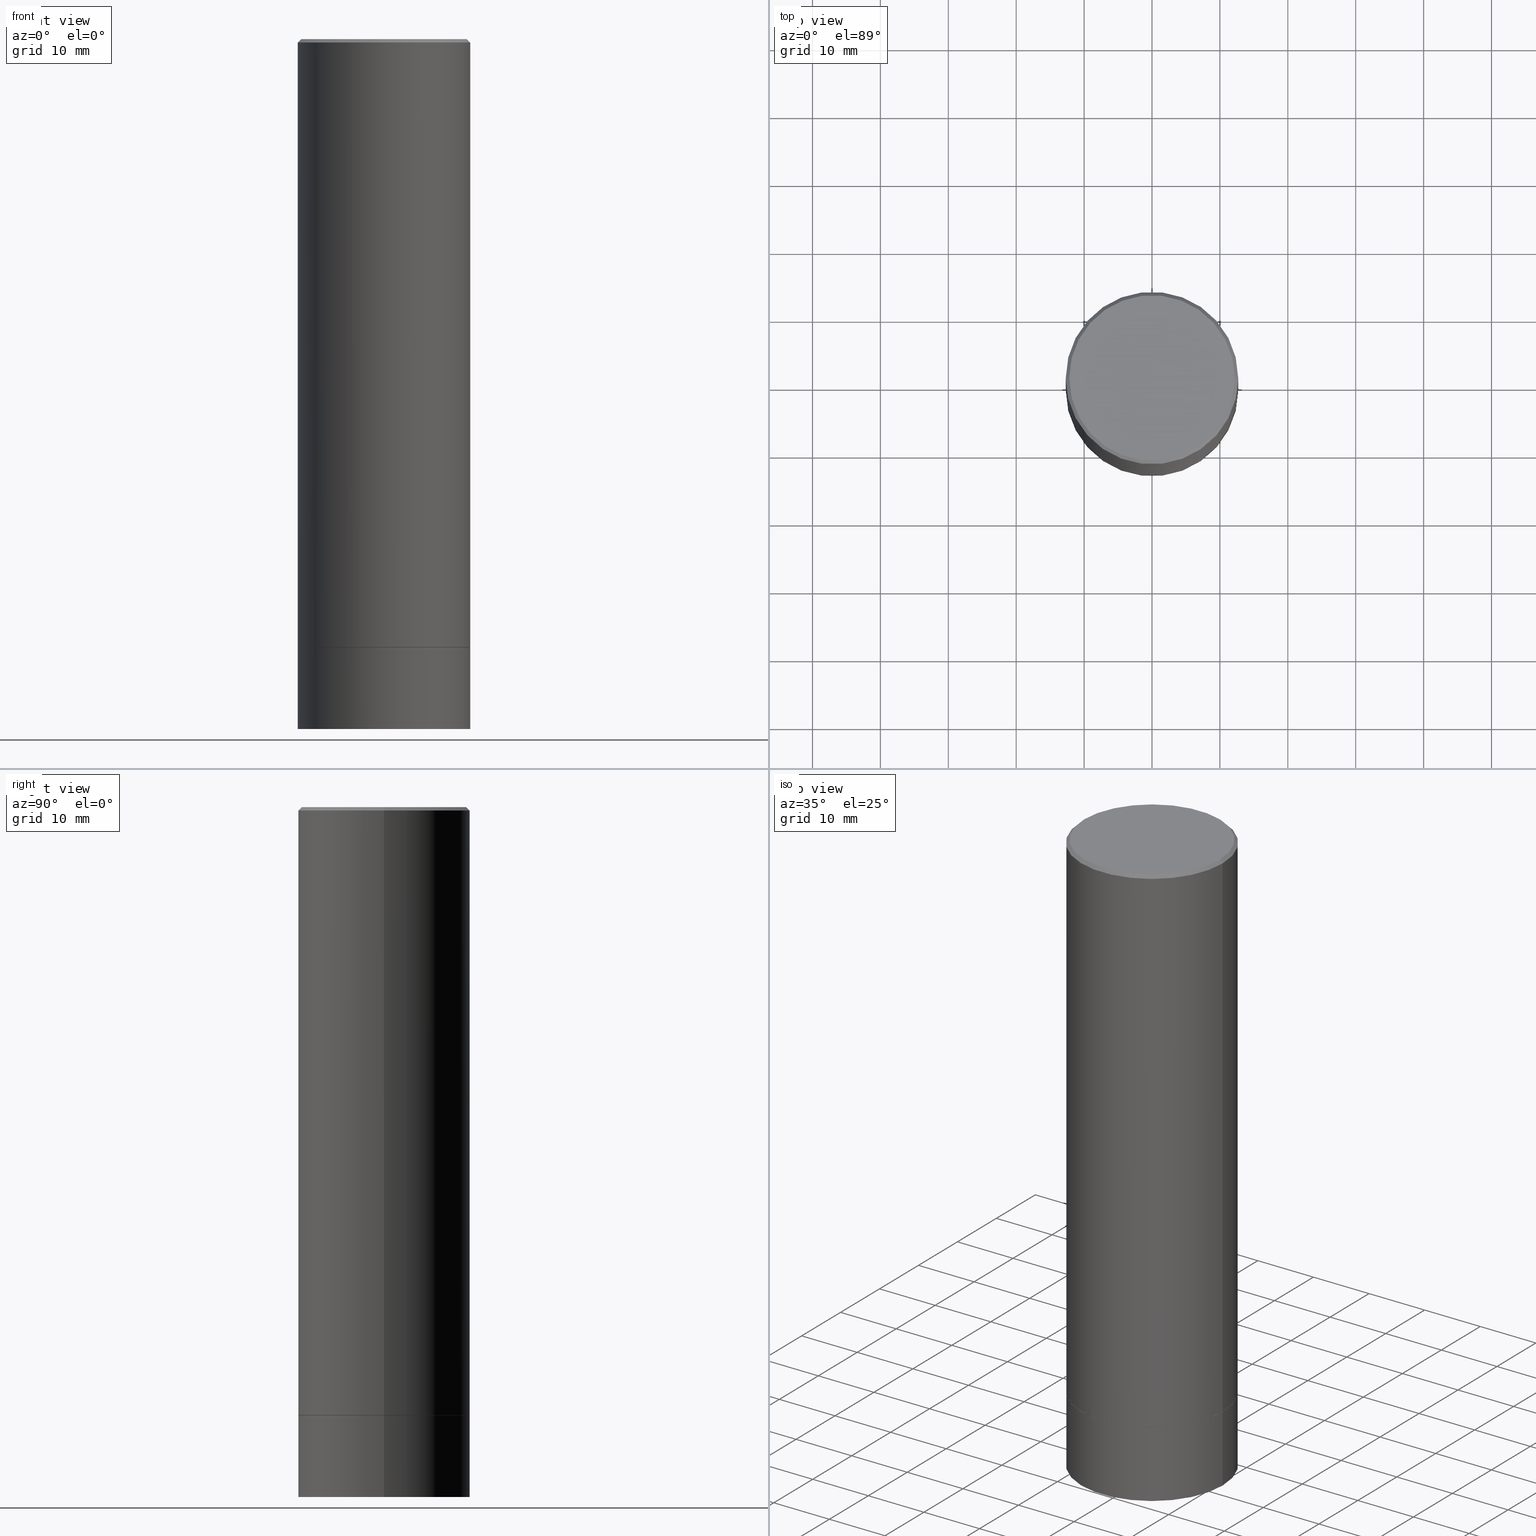
[diagram: canonical four-view strip — front | top / right | iso, engineering-drawing reading convention]
A machine part, canonical four-view strip (front | top / right | iso — engineering-drawing reading convention). The complete STEP part file that produces these views, byte-faithful:
ISO-10303-21;
HEADER;
FILE_DESCRIPTION (( 'STEP AP203' ),
    '1' );
FILE_NAME ('32671.STEP',
    '2022-04-27T15:46:50',
    ( '' ),
    ( '' ),
    'SwSTEP 2.0',
    'SolidWorks 2022',
    '' );
FILE_SCHEMA (( 'CONFIG_CONTROL_DESIGN' ));
ENDSEC;

DATA;
#1 = DIRECTION ( 'NONE',  ( -1.000000000000000000, 6.982962677686266711E-15, 0.000000000000000000 ) ) ;
#2 = AXIS2_PLACEMENT_3D ( 'NONE', #195, #164, #320 ) ;
#3 = ORIENTED_EDGE ( 'NONE', *, *, #51, .T. ) ;
#4 = ORIENTED_EDGE ( 'NONE', *, *, #96, .T. ) ;
#5 = COORDINATED_UNIVERSAL_TIME_OFFSET ( 5, 0, .BEHIND. ) ;
#6 = EDGE_LOOP ( 'NONE', ( #251, #119, #149, #74 ) ) ;
#7 = ORIENTED_EDGE ( 'NONE', *, *, #163, .F. ) ;
#8 = VECTOR ( 'NONE', #206, 39.37007874015748143 ) ;
#9 = DIRECTION ( 'NONE',  ( -2.445468806185136597E-29, 3.491481338843145583E-15, 1.000000000000000000 ) ) ;
#10 = DATE_TIME_ROLE ( 'creation_date' ) ;
#11 = EDGE_CURVE ( 'NONE', #338, #120, #350, .T. ) ;
#12 = ORIENTED_EDGE ( 'NONE', *, *, #388, .F. ) ;
#13 = APPROVAL_DATE_TIME ( #250, #23 ) ;
#14 = PRODUCT_RELATED_PRODUCT_CATEGORY ( 'detail', '', ( #130 ) ) ;
#15 = EDGE_CURVE ( 'NONE', #268, #99, #282, .T. ) ;
#16 = CARTESIAN_POINT ( 'NONE',  ( 8.626635760698687502E-29, -1.231654957090308107E-14, -3.527599999999999625 ) ) ;
#17 = CARTESIAN_POINT ( 'NONE',  ( 8.626635760698686381E-29, -1.231654957090307792E-14, -3.527599999999999181 ) ) ;
#18 = AXIS2_PLACEMENT_3D ( 'NONE', #291, #83, #41 ) ;
#19 = AXIS2_PLACEMENT_3D ( 'NONE', #246, #340, #67 ) ;
#20 = ORIENTED_EDGE ( 'NONE', *, *, #163, .T. ) ;
#21 = UNCERTAINTY_MEASURE_WITH_UNIT (LENGTH_MEASURE( 1.000000000000000082E-05 ), #159, 'distance_accuracy_value', 'NONE');
#22 = CARTESIAN_POINT ( 'NONE',  ( 4.890937612370302060E-31, -6.982962677686331052E-17, -0.02000000000000011491 ) ) ;
#23 = APPROVAL ( #106, 'UNSPECIFIED' ) ;
#24 = EDGE_CURVE ( 'NONE', #239, #317, #328, .T. ) ;
#25 = CONICAL_SURFACE ( 'NONE', #321, 0.4989999999999999991, 0.7853981633978239785 ) ;
#26 = APPROVAL_PERSON_ORGANIZATION ( #372, #136, #368 ) ;
#27 = CARTESIAN_POINT ( 'NONE',  ( 8.626635760698686381E-29, -1.231654957090307792E-14, -3.527599999999999181 ) ) ;
#28 = DIRECTION ( 'NONE',  ( 2.445468806185136597E-29, -3.491481338843145583E-15, -1.000000000000000000 ) ) ;
#29 = LINE ( 'NONE', #89, #8 ) ;
#30 = ADVANCED_FACE ( 'NONE', ( #199 ), #133, .F. ) ;
#31 = CARTESIAN_POINT ( 'NONE',  ( 0.4999999999999996114, -3.500078625662626318E-15, -0.02000000000000011491 ) ) ;
#32 = ORIENTED_EDGE ( 'NONE', *, *, #323, .T. ) ;
#33 = LINE ( 'NONE', #258, #139 ) ;
#34 = AXIS2_PLACEMENT_3D ( 'NONE', #171, #267, #209 ) ;
#35 = ORIENTED_EDGE ( 'NONE', *, *, #128, .F. ) ;
#36 = LINE ( 'NONE', #38, #357 ) ;
#37 = ORIENTED_EDGE ( 'NONE', *, *, #360, .T. ) ;
#38 = CARTESIAN_POINT ( 'NONE',  ( -0.4989999999999999991, -8.770941319460178784E-15, -3.527599999999999181 ) ) ;
#39 = EDGE_LOOP ( 'NONE', ( #369, #3, #147 ) ) ;
#40 = PERSON_AND_ORGANIZATION ( #55, #215 ) ;
#41 = DIRECTION ( 'NONE',  ( 1.000000000000000000, -6.982962677686266711E-15, 0.000000000000000000 ) ) ;
#42 = ORIENTED_EDGE ( 'NONE', *, *, #51, .F. ) ;
#43 = CARTESIAN_POINT ( 'NONE',  ( -0.5000000000000000000, 3.552713678800500929E-15, -2.459467545127452891E-29 ) ) ;
#44 = PERSON_AND_ORGANIZATION ( #55, #215 ) ;
#45 = ORIENTED_EDGE ( 'NONE', *, *, #128, .T. ) ;
#46 = AXIS2_PLACEMENT_3D ( 'NONE', #92, #266, #111 ) ;
#47 = PRODUCT_DEFINITION_FORMATION_WITH_SPECIFIED_SOURCE ( 'ANY', '', #130, .NOT_KNOWN. ) ;
#48 = DIRECTION ( 'NONE',  ( -2.445468806185136597E-29, 3.491481338843145583E-15, 1.000000000000000000 ) ) ;
#49 = DIRECTION ( 'NONE',  ( -1.000000000000000000, 6.982962677686266711E-15, 0.000000000000000000 ) ) ;
#50 = DIRECTION ( 'NONE',  ( -2.445468806185136877E-29, 3.491481338843145188E-15, 1.000000000000000000 ) ) ;
#51 = EDGE_CURVE ( 'NONE', #102, #317, #84, .T. ) ;
#52 = DIRECTION ( 'NONE',  ( -2.445468806185136597E-29, 3.491481338843145583E-15, 1.000000000000000000 ) ) ;
#53 = EDGE_CURVE ( 'NONE', #120, #146, #104, .T. ) ;
#54 = CARTESIAN_POINT ( 'NONE',  ( 0.000000000000000000, 0.000000000000000000, 0.000000000000000000 ) ) ;
#55 = PERSON ( 'UNSPECIFIED', 'UNSPECIFIED', 'UNSPECIFIED', ('UNSPECIFIED'), ('UNSPECIFIED'), ('UNSPECIFIED') ) ;
#56 = CLOSED_SHELL ( 'NONE', ( #312, #30, #248, #217, #337 ) ) ;
#57 = AXIS2_PLACEMENT_3D ( 'NONE', #27, #236, #238 ) ;
#58 = DIRECTION ( 'NONE',  ( 1.000000000000000000, -6.982962677686265133E-15, 0.000000000000000000 ) ) ;
#59 = DIRECTION ( 'NONE',  ( -1.000000000000000000, 6.982962677686266711E-15, 0.000000000000000000 ) ) ;
#60 = CARTESIAN_POINT ( 'NONE',  ( 3.351822085289404787E-15, 0.4799999999999995937, -1.669508273909557867E-15 ) ) ;
#61 = ORIENTED_EDGE ( 'NONE', *, *, #243, .F. ) ;
#62 = CARTESIAN_POINT ( 'NONE',  ( 1.060388317724523486E-27, -1.513953485686851268E-13, -43.36135120769337448 ) ) ;
#63 = EDGE_LOOP ( 'NONE', ( #216, #335, #153, #220 ) ) ;
#64 = AXIS2_PLACEMENT_3D ( 'NONE', #219, #286, #156 ) ;
#65 = ORIENTED_EDGE ( 'NONE', *, *, #15, .T. ) ;
#66 = MANIFOLD_SOLID_BREP ( 'Body-Move/Copy2[1]', #56 ) ;
#67 = DIRECTION ( 'NONE',  ( 1.000000000000000000, -6.982962677686266711E-15, 4.876176775795935793E-29 ) ) ;
#68 = CC_DESIGN_PERSON_AND_ORGANIZATION_ASSIGNMENT ( #281, #129, ( #130 ) ) ;
#69 = EDGE_CURVE ( 'NONE', #317, #239, #196, .T. ) ;
#70 = DIRECTION ( 'NONE',  ( -1.000000000000000000, 6.982962677686265922E-15, -4.876176775795935793E-29 ) ) ;
#71 = SECURITY_CLASSIFICATION_LEVEL ( 'unclassified' ) ;
#72 = ORIENTED_EDGE ( 'NONE', *, *, #353, .F. ) ;
#73 = DATE_TIME_ROLE ( 'classification_date' ) ;
#74 = ORIENTED_EDGE ( 'NONE', *, *, #11, .F. ) ;
#75 = VECTOR ( 'NONE', #110, 39.37007874015748143 ) ;
#76 = CONICAL_SURFACE ( 'NONE', #256, 2255.510300424507022, 1.553343034274960344 ) ;
#77 = CARTESIAN_POINT ( 'NONE',  ( -0.5000000000000026645, -1.047444401652943162E-14, -4.000000000000000000 ) ) ;
#78 = PERSON_AND_ORGANIZATION ( #55, #215 ) ;
#79 = PERSON_AND_ORGANIZATION ( #55, #215 ) ;
#80 = APPROVAL_DATE_TIME ( #227, #226 ) ;
#81 = CIRCLE ( 'NONE', #295, 0.4799999999999995937 ) ;
#82 = CC_DESIGN_APPROVAL ( #226, ( #247 ) ) ;
#83 = DIRECTION ( 'NONE',  ( -2.445468806185136597E-29, 3.491481338843145583E-15, 1.000000000000000000 ) ) ;
#84 = LINE ( 'NONE', #165, #75 ) ;
#85 = CC_DESIGN_DATE_AND_TIME_ASSIGNMENT ( #125, #10, ( #203 ) ) ;
#86 = AXIS2_PLACEMENT_3D ( 'NONE', #272, #352, #301 ) ;
#87 = ADVANCED_FACE ( 'NONE', ( #204 ), #384, .F. ) ;
#88 = FACE_OUTER_BOUND ( 'NONE', #157, .T. ) ;
#89 = CARTESIAN_POINT ( 'NONE',  ( 7.335353718403037072E-18, -1.393545333864001155E-14, -3.991272467535894819 ) ) ;
#90 = CARTESIAN_POINT ( 'NONE',  ( 8.626635760698686381E-29, -1.231654957090307792E-14, -3.527599999999999181 ) ) ;
#91 = VECTOR ( 'NONE', #100, 39.37007874015748143 ) ;
#92 = CARTESIAN_POINT ( 'NONE',  ( 8.626635760698687502E-29, -1.231654957090308107E-14, -3.527599999999999625 ) ) ;
#93 = CARTESIAN_POINT ( 'NONE',  ( 0.4799999999999995937, -3.396558832296479338E-15, 1.280553747032483033E-17 ) ) ;
#94 = EDGE_LOOP ( 'NONE', ( #249, #190 ) ) ;
#95 = LINE ( 'NONE', #43, #91 ) ;
#96 = EDGE_CURVE ( 'NONE', #275, #179, #33, .T. ) ;
#97 = AXIS2_PLACEMENT_3D ( 'NONE', #229, #324, #49 ) ;
#98 = LOCAL_TIME ( 11, 46, 50.00000000000000000, #105 ) ;
#99 = VERTEX_POINT ( 'NONE', #114 ) ;
#100 = DIRECTION ( 'NONE',  ( -2.445468806185136877E-29, 3.491481338843145188E-15, 1.000000000000000000 ) ) ;
#101 = APPROVAL_STATUS ( 'not_yet_approved' ) ;
#102 = VERTEX_POINT ( 'NONE', #230 ) ;
#103 = CYLINDRICAL_SURFACE ( 'NONE', #386, 0.5000000000000000000 ) ;
#104 = LINE ( 'NONE', #221, #370 ) ;
#105 = COORDINATED_UNIVERSAL_TIME_OFFSET ( 5, 0, .BEHIND. ) ;
#106 = APPROVAL_STATUS ( 'not_yet_approved' ) ;
#107 = APPROVAL_STATUS ( 'not_yet_approved' ) ;
#108 = ORIENTED_EDGE ( 'NONE', *, *, #11, .T. ) ;
#109 = AXIS2_PLACEMENT_3D ( 'NONE', #223, #9, #366 ) ;
#110 = DIRECTION ( 'NONE',  ( -0.9998476951563912696, 6.920964387254060733E-15, -0.01745240643727649296 ) ) ;
#111 = DIRECTION ( 'NONE',  ( 1.000000000000000000, -6.982962677686265922E-15, 4.876176775795935793E-29 ) ) ;
#112 = CONICAL_SURFACE ( 'NONE', #290, 0.4999999999999996114, 0.7853981633974449483 ) ;
#113 = CARTESIAN_POINT ( 'NONE',  ( -0.4989999999999999991, -8.765642865111956382E-15, -3.527599999999999181 ) ) ;
#114 = CARTESIAN_POINT ( 'NONE',  ( -0.5000000000000000000, -9.588523784337331561E-15, -3.527599999999999625 ) ) ;
#115 = DIRECTION ( 'NONE',  ( -2.445468806185136597E-29, 3.491481338843145583E-15, 1.000000000000000000 ) ) ;
#116 = DIRECTION ( 'NONE',  ( 2.445468806185136597E-29, -3.491481338843145583E-15, -1.000000000000000000 ) ) ;
#117 = CIRCLE ( 'NONE', #57, 0.4989999999999999991 ) ;
#118 = CARTESIAN_POINT ( 'NONE',  ( 8.626635760698687502E-29, -1.231654957090308107E-14, -3.527599999999999625 ) ) ;
#119 = ORIENTED_EDGE ( 'NONE', *, *, #307, .T. ) ;
#120 = VERTEX_POINT ( 'NONE', #326 ) ;
#121 = CC_DESIGN_PERSON_AND_ORGANIZATION_ASSIGNMENT ( #132, #287, ( #47 ) ) ;
#122 = LENGTH_MEASURE_WITH_UNIT ( LENGTH_MEASURE( 0.02539999999999999897 ), #200 );
#123 = EDGE_CURVE ( 'NONE', #179, #146, #378, .T. ) ;
#124 = ORIENTED_EDGE ( 'NONE', *, *, #69, .F. ) ;
#125 = DATE_AND_TIME ( #151, #126 ) ;
#126 = LOCAL_TIME ( 11, 46, 50.00000000000000000, #5 ) ;
#127 = ORIENTED_EDGE ( 'NONE', *, *, #380, .T. ) ;
#128 = EDGE_CURVE ( 'NONE', #300, #179, #359, .T. ) ;
#129 = PERSON_AND_ORGANIZATION_ROLE ( 'design_owner' ) ;
#130 = PRODUCT ( '32671', '32671', '', ( #131 ) ) ;
#131 = MECHANICAL_CONTEXT ( 'NONE', #279, 'mechanical' ) ;
#132 = PERSON_AND_ORGANIZATION ( #55, #215 ) ;
#133 = CONICAL_SURFACE ( 'NONE', #97, 2255.510300424507022, 1.553343034274960344 ) ;
#134 = DIRECTION ( 'NONE',  ( -2.445468806185136597E-29, 3.491481338843145583E-15, 1.000000000000000000 ) ) ;
#135 = EDGE_LOOP ( 'NONE', ( #178, #188 ) ) ;
#136 = APPROVAL ( #101, 'UNSPECIFIED' ) ;
#137 = ADVANCED_FACE ( 'NONE', ( #233 ), #167, .F. ) ;
#138 = VECTOR ( 'NONE', #318, 39.37007874015748854 ) ;
#139 = VECTOR ( 'NONE', #140, 39.37007874015748143 ) ;
#140 = DIRECTION ( 'NONE',  ( -2.445468806185136877E-29, 3.491481338843145188E-15, 1.000000000000000000 ) ) ;
#141 = CONICAL_SURFACE ( 'NONE', #214, 0.4989999999999999991, 0.7853981633978239785 ) ;
#142 = CC_DESIGN_APPROVAL ( #136, ( #47 ) ) ;
#143 = DIRECTION ( 'NONE',  ( 1.000000000000000000, -6.982962677686265133E-15, 0.000000000000000000 ) ) ;
#144 = DIRECTION ( 'NONE',  ( -1.000000000000000000, 6.982962677686265922E-15, -4.876176775795935793E-29 ) ) ;
#145 = DIRECTION ( 'NONE',  ( -2.445468806185136597E-29, 3.491481338843145583E-15, 1.000000000000000000 ) ) ;
#146 = VERTEX_POINT ( 'NONE', #361 ) ;
#147 = ORIENTED_EDGE ( 'NONE', *, *, #24, .F. ) ;
#148 = ADVANCED_FACE ( 'NONE', ( #387 ), #25, .T. ) ;
#149 = ORIENTED_EDGE ( 'NONE', *, *, #278, .F. ) ;
#150 = CARTESIAN_POINT ( 'NONE',  ( 0.000000000000000000, 0.000000000000000000, 0.000000000000000000 ) ) ;
#151 = CALENDAR_DATE ( 2022, 27, 4 ) ;
#152 = ORIENTED_EDGE ( 'NONE', *, *, #69, .T. ) ;
#153 = ORIENTED_EDGE ( 'NONE', *, *, #53, .T. ) ;
#154 = CARTESIAN_POINT ( 'NONE',  ( -0.4799999999999995937, 3.386736898677836436E-15, 1.280553747027767124E-17 ) ) ;
#155 = ORIENTED_EDGE ( 'NONE', *, *, #194, .T. ) ;
#156 = DIRECTION ( 'NONE',  ( 1.000000000000000000, 0.000000000000000000, 0.000000000000000000 ) ) ;
#157 = EDGE_LOOP ( 'NONE', ( #274, #152, #37, #7 ) ) ;
#158 = DIRECTION ( 'NONE',  ( -2.445468806185136597E-29, 3.491481338843145583E-15, 1.000000000000000000 ) ) ;
#159 =( CONVERSION_BASED_UNIT ( 'INCH', #122 ) LENGTH_UNIT ( ) NAMED_UNIT ( #259 ) );
#160 = CARTESIAN_POINT ( 'NONE',  ( 3.491481338843219341E-15, 0.4999999999999876765, -3.527600000000001401 ) ) ;
#161 =( NAMED_UNIT ( * ) SI_UNIT ( $, .STERADIAN. ) SOLID_ANGLE_UNIT ( ) );
#162 = ADVANCED_FACE ( 'NONE', ( #265 ), #141, .T. ) ;
#163 = EDGE_CURVE ( 'NONE', #99, #268, #325, .T. ) ;
#164 = DIRECTION ( 'NONE',  ( -2.445468806185136597E-29, 3.491481338843145583E-15, 1.000000000000000000 ) ) ;
#165 = CARTESIAN_POINT ( 'NONE',  ( -7.335353718207824813E-18, -1.393545333864001155E-14, -3.991272467535894819 ) ) ;
#166 = AXIS2_PLACEMENT_3D ( 'NONE', #17, #48, #379 ) ;
#167 = PLANE ( 'NONE',  #46 ) ;
#168 = CARTESIAN_POINT ( 'NONE',  ( -0.4999999999999996114, 3.421651712066267296E-15, -0.02000000000000011491 ) ) ;
#169 = CC_DESIGN_SECURITY_CLASSIFICATION ( #247, ( #47 ) ) ;
#170 = AXIS2_PLACEMENT_3D ( 'NONE', #390, #362, #1 ) ;
#171 = CARTESIAN_POINT ( 'NONE',  ( 4.890937612370302060E-31, -6.982962677686331052E-17, -0.02000000000000011491 ) ) ;
#172 = LINE ( 'NONE', #31, #207 ) ;
#173 = EDGE_LOOP ( 'NONE', ( #367, #181, #346, #35 ) ) ;
#174 = CYLINDRICAL_SURFACE ( 'NONE', #383, 0.5000000000000000000 ) ;
#175 = VERTEX_POINT ( 'NONE', #113 ) ;
#176 = FACE_OUTER_BOUND ( 'NONE', #212, .T. ) ;
#177 = AXIS2_PLACEMENT_3D ( 'NONE', #22, #234, #261 ) ;
#178 = ORIENTED_EDGE ( 'NONE', *, *, #388, .T. ) ;
#179 = VERTEX_POINT ( 'NONE', #168 ) ;
#180 = COORDINATED_UNIVERSAL_TIME_OFFSET ( 5, 0, .BEHIND. ) ;
#181 = ORIENTED_EDGE ( 'NONE', *, *, #243, .T. ) ;
#182 = PERSON_AND_ORGANIZATION_ROLE ( 'classification_officer' ) ;
#183 = CARTESIAN_POINT ( 'NONE',  ( 0.000000000000000000, 0.000000000000000000, 0.000000000000000000 ) ) ;
#184 = DIRECTION ( 'NONE',  ( -2.445468806185136877E-29, 3.491481338843145188E-15, 1.000000000000000000 ) ) ;
#185 = CALENDAR_DATE ( 2022, 27, 4 ) ;
#186 = AXIS2_PLACEMENT_3D ( 'NONE', #16, #134, #253 ) ;
#187 = AXIS2_PLACEMENT_3D ( 'NONE', #183, #336, #280 ) ;
#188 = ORIENTED_EDGE ( 'NONE', *, *, #205, .T. ) ;
#189 = FACE_OUTER_BOUND ( 'NONE', #245, .T. ) ;
#190 = ORIENTED_EDGE ( 'NONE', *, *, #380, .F. ) ;
#191 = DATE_AND_TIME ( #311, #98 ) ;
#192 = CARTESIAN_POINT ( 'NONE',  ( 0.5000000000000000000, -3.491481338843133355E-15, 2.438088387897967896E-29 ) ) ;
#193 = CC_DESIGN_DATE_AND_TIME_ASSIGNMENT ( #191, #73, ( #247 ) ) ;
#194 = EDGE_CURVE ( 'NONE', #102, #239, #29, .T. ) ;
#195 = CARTESIAN_POINT ( 'NONE',  ( -3.131554243005659264E-46, 4.471029511141341874E-32, 1.280553747030123384E-17 ) ) ;
#196 = CIRCLE ( 'NONE', #262, 0.5000000000000000000 ) ;
#197 = CC_DESIGN_APPROVAL ( #23, ( #203 ) ) ;
#198 = EDGE_CURVE ( 'NONE', #338, #175, #117, .T. ) ;
#199 = FACE_OUTER_BOUND ( 'NONE', #284, .T. ) ;
#200 =( LENGTH_UNIT ( ) NAMED_UNIT ( * ) SI_UNIT ( $, .METRE. ) );
#201 = CIRCLE ( 'NONE', #2, 0.4799999999999995937 ) ;
#202 = DIRECTION ( 'NONE',  ( 2.438088387897960049E-29, -3.491481338843145188E-15, -1.000000000000000000 ) ) ;
#203 = PRODUCT_DEFINITION ( 'UNKNOWN', '', #47, #382 ) ;
#204 = FACE_OUTER_BOUND ( 'NONE', #135, .T. ) ;
#205 = EDGE_CURVE ( 'NONE', #244, #300, #81, .T. ) ;
#206 = DIRECTION ( 'NONE',  ( 0.9998476951563912696, -6.920387862090559512E-15, -0.01745240643727649296 ) ) ;
#207 = VECTOR ( 'NONE', #364, 39.37007874015748143 ) ;
#208 = CARTESIAN_POINT ( 'NONE',  ( -0.4999999999999996114, 3.421651712066267296E-15, -0.02000000000000011491 ) ) ;
#209 = DIRECTION ( 'NONE',  ( 1.000000000000000000, -6.982962677686266711E-15, 0.000000000000000000 ) ) ;
#210 = ORIENTED_EDGE ( 'NONE', *, *, #53, .F. ) ;
#211 = CARTESIAN_POINT ( 'NONE',  ( 0.4989999999999999991, -1.580104794706852526E-14, -3.527599999999999181 ) ) ;
#212 = EDGE_LOOP ( 'NONE', ( #303, #32, #308, #310 ) ) ;
#213 = CARTESIAN_POINT ( 'NONE',  ( -0.5000000000000000000, -2.638730179370047780E-15, -3.526600000000000179 ) ) ;
#214 = AXIS2_PLACEMENT_3D ( 'NONE', #90, #115, #58 ) ;
#215 = ORGANIZATION ( 'UNSPECIFIED', 'UNSPECIFIED', '' ) ;
#216 = ORIENTED_EDGE ( 'NONE', *, *, #96, .F. ) ;
#217 = ADVANCED_FACE ( 'NONE', ( #88 ), #174, .T. ) ;
#218 = PLANE ( 'NONE',  #339 ) ;
#219 = CARTESIAN_POINT ( 'NONE',  ( 0.000000000000000000, 0.000000000000000000, 0.000000000000000000 ) ) ;
#220 = ORIENTED_EDGE ( 'NONE', *, *, #123, .F. ) ;
#221 = CARTESIAN_POINT ( 'NONE',  ( 0.4999999999999997780, -3.491481338843131778E-15, 2.438088387897966775E-29 ) ) ;
#222 = PERSON_AND_ORGANIZATION_ROLE ( 'creator' ) ;
#223 = CARTESIAN_POINT ( 'NONE',  ( 8.624190291892503020E-29, -1.231305808956423806E-14, -3.526600000000000179 ) ) ;
#224 = PERSON_AND_ORGANIZATION_ROLE ( 'creator' ) ;
#225 = APPROVAL_ROLE ( '' ) ;
#226 = APPROVAL ( #107, 'UNSPECIFIED' ) ;
#227 = DATE_AND_TIME ( #185, #297 ) ;
#228 = CLOSED_SHELL ( 'NONE', ( #162, #260, #235, #355, #276, #148, #137, #87 ) ) ;
#229 = CARTESIAN_POINT ( 'NONE',  ( 1.060388317724523486E-27, -1.513953485686851268E-13, -43.36135120769337448 ) ) ;
#230 = CARTESIAN_POINT ( 'NONE',  ( 9.755410066220353201E-29, -1.394278869235831520E-14, -3.991272467535894819 ) ) ;
#231 = EDGE_CURVE ( 'NONE', #146, #179, #354, .T. ) ;
#232 = ADVANCED_BREP_SHAPE_REPRESENTATION ( '32671', ( #66, #333, #64 ), #304 ) ;
#233 = FACE_OUTER_BOUND ( 'NONE', #94, .T. ) ;
#234 = DIRECTION ( 'NONE',  ( -2.445468806185136597E-29, 3.491481338843145583E-15, 1.000000000000000000 ) ) ;
#235 = ADVANCED_FACE ( 'NONE', ( #298 ), #330, .T. ) ;
#236 = DIRECTION ( 'NONE',  ( -2.445468806185136597E-29, 3.491481338843145583E-15, 1.000000000000000000 ) ) ;
#237 = AXIS2_PLACEMENT_3D ( 'NONE', #118, #293, #389 ) ;
#238 = DIRECTION ( 'NONE',  ( 1.000000000000000000, -6.982962677686265133E-15, 0.000000000000000000 ) ) ;
#239 = VERTEX_POINT ( 'NONE', #331 ) ;
#240 = CYLINDRICAL_SURFACE ( 'NONE', #187, 0.4999999999999997780 ) ;
#241 = CARTESIAN_POINT ( 'NONE',  ( 4.890937612370302060E-31, -6.982962677686331052E-17, -0.02000000000000011491 ) ) ;
#242 = CYLINDRICAL_SURFACE ( 'NONE', #19, 0.4999999999999997780 ) ;
#243 = EDGE_CURVE ( 'NONE', #244, #146, #172, .T. ) ;
#244 = VERTEX_POINT ( 'NONE', #93 ) ;
#245 = EDGE_LOOP ( 'NONE', ( #65, #20 ) ) ;
#246 = CARTESIAN_POINT ( 'NONE',  ( 0.000000000000000000, 0.000000000000000000, 0.000000000000000000 ) ) ;
#247 = SECURITY_CLASSIFICATION ( '', '', #71 ) ;
#248 = ADVANCED_FACE ( 'NONE', ( #334 ), #76, .F. ) ;
#249 = ORIENTED_EDGE ( 'NONE', *, *, #198, .F. ) ;
#250 = DATE_AND_TIME ( #375, #371 ) ;
#251 = ORIENTED_EDGE ( 'NONE', *, *, #198, .T. ) ;
#252 = PERSON_AND_ORGANIZATION ( #55, #215 ) ;
#253 = DIRECTION ( 'NONE',  ( 1.000000000000000000, -6.982962677686266711E-15, 0.000000000000000000 ) ) ;
#254 = DIRECTION ( 'NONE',  ( -1.000000000000000000, 6.982962677686266711E-15, 0.000000000000000000 ) ) ;
#255 = ORIENTED_EDGE ( 'NONE', *, *, #123, .T. ) ;
#256 = AXIS2_PLACEMENT_3D ( 'NONE', #62, #116, #59 ) ;
#257 = PRODUCT_DEFINITION_SHAPE ( 'NONE', 'NONE',  #203 ) ;
#258 = CARTESIAN_POINT ( 'NONE',  ( -0.4999999999999997780, 3.552713678800499352E-15, -2.459467545127452050E-29 ) ) ;
#259 = DIMENSIONAL_EXPONENTS ( 1.000000000000000000, 0.000000000000000000, 0.000000000000000000, 0.000000000000000000, 0.000000000000000000, 0.000000000000000000, 0.000000000000000000 ) ;
#260 = ADVANCED_FACE ( 'NONE', ( #263 ), #240, .T. ) ;
#261 = DIRECTION ( 'NONE',  ( 1.000000000000000000, -6.982962677686266711E-15, 0.000000000000000000 ) ) ;
#262 = AXIS2_PLACEMENT_3D ( 'NONE', #313, #158, #285 ) ;
#263 = FACE_OUTER_BOUND ( 'NONE', #342, .T. ) ;
#264 = LOCAL_TIME ( 11, 46, 50.00000000000000000, #180 ) ;
#265 = FACE_OUTER_BOUND ( 'NONE', #6, .T. ) ;
#266 = DIRECTION ( 'NONE',  ( -2.438088387897960049E-29, 3.491481338843145188E-15, 1.000000000000000000 ) ) ;
#267 = DIRECTION ( 'NONE',  ( -2.445468806185136597E-29, 3.491481338843145583E-15, 1.000000000000000000 ) ) ;
#268 = VERTEX_POINT ( 'NONE', #305 ) ;
#269 = VECTOR ( 'NONE', #50, 39.37007874015748143 ) ;
#270 = FACE_OUTER_BOUND ( 'NONE', #381, .T. ) ;
#271 = ORIENTED_EDGE ( 'NONE', *, *, #231, .F. ) ;
#272 = CARTESIAN_POINT ( 'NONE',  ( 8.624190291892503020E-29, -1.231305808956423806E-14, -3.526600000000000179 ) ) ;
#273 = APPROVAL_ROLE ( '' ) ;
#274 = ORIENTED_EDGE ( 'NONE', *, *, #323, .F. ) ;
#275 = VERTEX_POINT ( 'NONE', #213 ) ;
#276 = ADVANCED_FACE ( 'NONE', ( #374 ), #242, .T. ) ;
#277 = DIRECTION ( 'NONE',  ( -2.445468806185136597E-29, 3.491481338843145583E-15, 1.000000000000000000 ) ) ;
#278 = EDGE_CURVE ( 'NONE', #120, #275, #283, .T. ) ;
#279 = APPLICATION_CONTEXT ( 'configuration controlled 3d designs of mechanical parts and assemblies' ) ;
#280 = DIRECTION ( 'NONE',  ( 1.000000000000000000, -6.982962677686266711E-15, 4.876176775795935793E-29 ) ) ;
#281 = PERSON_AND_ORGANIZATION ( #55, #215 ) ;
#282 = CIRCLE ( 'NONE', #186, 0.5000000000000000000 ) ;
#283 = CIRCLE ( 'NONE', #109, 0.5000000000000000000 ) ;
#284 = EDGE_LOOP ( 'NONE', ( #42, #155, #124 ) ) ;
#285 = DIRECTION ( 'NONE',  ( 1.000000000000000000, -6.982962677686266711E-15, 0.000000000000000000 ) ) ;
#286 = DIRECTION ( 'NONE',  ( 0.000000000000000000, 0.000000000000000000, 1.000000000000000000 ) ) ;
#287 = PERSON_AND_ORGANIZATION_ROLE ( 'design_supplier' ) ;
#288 = CIRCLE ( 'NONE', #86, 0.5000000000000000000 ) ;
#289 = LINE ( 'NONE', #192, #269 ) ;
#290 = AXIS2_PLACEMENT_3D ( 'NONE', #241, #28, #254 ) ;
#291 = CARTESIAN_POINT ( 'NONE',  ( 9.781875224740546387E-29, -1.396592535537258233E-14, -4.000000000000000000 ) ) ;
#292 = CC_DESIGN_PERSON_AND_ORGANIZATION_ASSIGNMENT ( #252, #182, ( #247 ) ) ;
#293 = DIRECTION ( 'NONE',  ( -2.445468806185136597E-29, 3.491481338843145583E-15, 1.000000000000000000 ) ) ;
#294 = DIRECTION ( 'NONE',  ( 1.000000000000000000, -6.982962677686266711E-15, 4.876176775795935793E-29 ) ) ;
#295 = AXIS2_PLACEMENT_3D ( 'NONE', #329, #327, #302 ) ;
#296 = APPLICATION_CONTEXT ( 'configuration controlled 3d designs of mechanical parts and assemblies' ) ;
#297 = LOCAL_TIME ( 11, 46, 50.00000000000000000, #347 ) ;
#298 = FACE_OUTER_BOUND ( 'NONE', #173, .T. ) ;
#299 = DIRECTION ( 'NONE',  ( -0.7071067811865451302, 2.468850131082231817E-15, -0.7071067811865499042 ) ) ;
#300 = VERTEX_POINT ( 'NONE', #154 ) ;
#301 = DIRECTION ( 'NONE',  ( 1.000000000000000000, -6.982962677686266711E-15, 0.000000000000000000 ) ) ;
#302 = DIRECTION ( 'NONE',  ( 1.000000000000000000, -6.982962677686266711E-15, 4.876036955247133327E-29 ) ) ;
#303 = ORIENTED_EDGE ( 'NONE', *, *, #24, .T. ) ;
#304 =( GEOMETRIC_REPRESENTATION_CONTEXT ( 3 ) GLOBAL_UNCERTAINTY_ASSIGNED_CONTEXT ( ( #21 ) ) GLOBAL_UNIT_ASSIGNED_CONTEXT ( ( #159, #351, #161 ) ) REPRESENTATION_CONTEXT ( 'NONE', 'WORKASPACE' ) );
#305 = CARTESIAN_POINT ( 'NONE',  ( 0.5000000000000000000, -1.580803090974621443E-14, -3.527599999999999625 ) ) ;
#306 = CC_DESIGN_PERSON_AND_ORGANIZATION_ASSIGNMENT ( #78, #224, ( #203 ) ) ;
#307 = EDGE_CURVE ( 'NONE', #175, #275, #36, .T. ) ;
#308 = ORIENTED_EDGE ( 'NONE', *, *, #15, .F. ) ;
#309 = CALENDAR_DATE ( 2022, 27, 4 ) ;
#310 = ORIENTED_EDGE ( 'NONE', *, *, #360, .F. ) ;
#311 = CALENDAR_DATE ( 2022, 27, 4 ) ;
#312 = ADVANCED_FACE ( 'NONE', ( #176 ), #103, .T. ) ;
#313 = CARTESIAN_POINT ( 'NONE',  ( 9.781875224740546387E-29, -1.396592535537258233E-14, -4.000000000000000000 ) ) ;
#314 = AXIS2_PLACEMENT_3D ( 'NONE', #60, #202, #144 ) ;
#315 = DIRECTION ( 'NONE',  ( -0.7071067811868130271, 7.493145998871311837E-15, 0.7071067811862817853 ) ) ;
#316 = APPROVAL_DATE_TIME ( #344, #136 ) ;
#317 = VERTEX_POINT ( 'NONE', #77 ) ;
#318 = DIRECTION ( 'NONE',  ( 0.7071067811868130271, -2.468850131085038979E-15, 0.7071067811862817853 ) ) ;
#319 = SHAPE_DEFINITION_REPRESENTATION ( #257, #232 ) ;
#320 = DIRECTION ( 'NONE',  ( 1.000000000000000000, -6.982962677686266711E-15, 4.876036955247133327E-29 ) ) ;
#321 = AXIS2_PLACEMENT_3D ( 'NONE', #358, #145, #143 ) ;
#322 = APPROVAL_PERSON_ORGANIZATION ( #40, #226, #225 ) ;
#323 = EDGE_CURVE ( 'NONE', #317, #99, #95, .T. ) ;
#324 = DIRECTION ( 'NONE',  ( 2.445468806185136597E-29, -3.491481338843145583E-15, -1.000000000000000000 ) ) ;
#325 = CIRCLE ( 'NONE', #237, 0.5000000000000000000 ) ;
#326 = CARTESIAN_POINT ( 'NONE',  ( 0.5000000000000000000, -1.580453942840736984E-14, -3.526600000000000179 ) ) ;
#327 = DIRECTION ( 'NONE',  ( -2.445468806185136597E-29, 3.491481338843145583E-15, 1.000000000000000000 ) ) ;
#328 = CIRCLE ( 'NONE', #18, 0.5000000000000000000 ) ;
#329 = CARTESIAN_POINT ( 'NONE',  ( -3.131554243005659264E-46, 4.471029511141341874E-32, 1.280553747030123384E-17 ) ) ;
#330 = CONICAL_SURFACE ( 'NONE', #170, 0.4999999999999996114, 0.7853981633974449483 ) ;
#331 = CARTESIAN_POINT ( 'NONE',  ( 0.5000000000000026645, -1.739617435425836547E-14, -4.000000000000000000 ) ) ;
#332 = EDGE_LOOP ( 'NONE', ( #345, #127, #108, #72 ) ) ;
#333 = MANIFOLD_SOLID_BREP ( 'Body-Move/Copy2[2]', #228 ) ;
#334 = FACE_OUTER_BOUND ( 'NONE', #39, .T. ) ;
#335 = ORIENTED_EDGE ( 'NONE', *, *, #353, .T. ) ;
#336 = DIRECTION ( 'NONE',  ( -2.445468806185136597E-29, 3.491481338843145583E-15, 1.000000000000000000 ) ) ;
#337 = ADVANCED_FACE ( 'NONE', ( #189 ), #218, .F. ) ;
#338 = VERTEX_POINT ( 'NONE', #211 ) ;
#339 = AXIS2_PLACEMENT_3D ( 'NONE', #160, #343, #70 ) ;
#340 = DIRECTION ( 'NONE',  ( -2.445468806185136597E-29, 3.491481338843145583E-15, 1.000000000000000000 ) ) ;
#341 = APPLICATION_PROTOCOL_DEFINITION ( 'international standard', 'config_control_design', 1994, #279 ) ;
#342 = EDGE_LOOP ( 'NONE', ( #373, #4, #271, #210 ) ) ;
#343 = DIRECTION ( 'NONE',  ( 2.438088387897960049E-29, -3.491481338843145188E-15, -1.000000000000000000 ) ) ;
#344 = DATE_AND_TIME ( #309, #264 ) ;
#345 = ORIENTED_EDGE ( 'NONE', *, *, #307, .F. ) ;
#346 = ORIENTED_EDGE ( 'NONE', *, *, #231, .T. ) ;
#347 = COORDINATED_UNIVERSAL_TIME_OFFSET ( 5, 0, .BEHIND. ) ;
#348 = DIRECTION ( 'NONE',  ( 1.000000000000000000, -6.982962677686266711E-15, 4.876176775795935793E-29 ) ) ;
#349 = CIRCLE ( 'NONE', #166, 0.4989999999999999991 ) ;
#350 = LINE ( 'NONE', #356, #138 ) ;
#351 =( NAMED_UNIT ( * ) PLANE_ANGLE_UNIT ( ) SI_UNIT ( $, .RADIAN. ) );
#352 = DIRECTION ( 'NONE',  ( -2.445468806185136597E-29, 3.491481338843145583E-15, 1.000000000000000000 ) ) ;
#353 = EDGE_CURVE ( 'NONE', #275, #120, #288, .T. ) ;
#354 = CIRCLE ( 'NONE', #34, 0.4999999999999996114 ) ;
#355 = ADVANCED_FACE ( 'NONE', ( #270 ), #112, .T. ) ;
#356 = CARTESIAN_POINT ( 'NONE',  ( 0.4989999999999999991, -1.580104794706852526E-14, -3.527599999999999181 ) ) ;
#357 = VECTOR ( 'NONE', #315, 39.37007874015748854 ) ;
#358 = CARTESIAN_POINT ( 'NONE',  ( 8.626635760698686381E-29, -1.231654957090307792E-14, -3.527599999999999181 ) ) ;
#359 = LINE ( 'NONE', #208, #363 ) ;
#360 = EDGE_CURVE ( 'NONE', #239, #268, #289, .T. ) ;
#361 = CARTESIAN_POINT ( 'NONE',  ( 0.4999999999999996114, -3.500078625662626318E-15, -0.02000000000000011491 ) ) ;
#362 = DIRECTION ( 'NONE',  ( 2.445468806185136597E-29, -3.491481338843145583E-15, -1.000000000000000000 ) ) ;
#363 = VECTOR ( 'NONE', #299, 39.37007874015748143 ) ;
#364 = DIRECTION ( 'NONE',  ( 0.7071067811865451302, -7.319954787623248157E-15, -0.7071067811865499042 ) ) ;
#365 = CC_DESIGN_PERSON_AND_ORGANIZATION_ASSIGNMENT ( #44, #222, ( #47 ) ) ;
#366 = DIRECTION ( 'NONE',  ( 1.000000000000000000, -6.982962677686266711E-15, 0.000000000000000000 ) ) ;
#367 = ORIENTED_EDGE ( 'NONE', *, *, #205, .F. ) ;
#368 = APPROVAL_ROLE ( '' ) ;
#369 = ORIENTED_EDGE ( 'NONE', *, *, #194, .F. ) ;
#370 = VECTOR ( 'NONE', #184, 39.37007874015748143 ) ;
#371 = LOCAL_TIME ( 11, 46, 50.00000000000000000, #377 ) ;
#372 = PERSON_AND_ORGANIZATION ( #55, #215 ) ;
#373 = ORIENTED_EDGE ( 'NONE', *, *, #278, .T. ) ;
#374 = FACE_OUTER_BOUND ( 'NONE', #63, .T. ) ;
#375 = CALENDAR_DATE ( 2022, 27, 4 ) ;
#376 = APPLICATION_PROTOCOL_DEFINITION ( 'international standard', 'config_control_design', 1994, #296 ) ;
#377 = COORDINATED_UNIVERSAL_TIME_OFFSET ( 5, 0, .BEHIND. ) ;
#378 = CIRCLE ( 'NONE', #177, 0.4999999999999996114 ) ;
#379 = DIRECTION ( 'NONE',  ( 1.000000000000000000, -6.982962677686265133E-15, 0.000000000000000000 ) ) ;
#380 = EDGE_CURVE ( 'NONE', #175, #338, #349, .T. ) ;
#381 = EDGE_LOOP ( 'NONE', ( #61, #12, #45, #255 ) ) ;
#382 = DESIGN_CONTEXT ( 'detailed design', #296, 'design' ) ;
#383 = AXIS2_PLACEMENT_3D ( 'NONE', #54, #52, #294 ) ;
#384 = PLANE ( 'NONE',  #314 ) ;
#385 = APPROVAL_PERSON_ORGANIZATION ( #79, #23, #273 ) ;
#386 = AXIS2_PLACEMENT_3D ( 'NONE', #150, #277, #348 ) ;
#387 = FACE_OUTER_BOUND ( 'NONE', #332, .T. ) ;
#388 = EDGE_CURVE ( 'NONE', #300, #244, #201, .T. ) ;
#389 = DIRECTION ( 'NONE',  ( 1.000000000000000000, -6.982962677686266711E-15, 0.000000000000000000 ) ) ;
#390 = CARTESIAN_POINT ( 'NONE',  ( 4.890937612370302060E-31, -6.982962677686331052E-17, -0.02000000000000011491 ) ) ;
ENDSEC;
END-ISO-10303-21;
